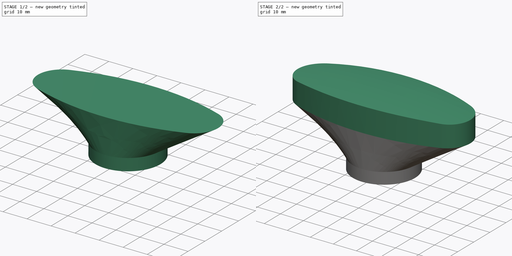
[diagram: build sequence overview — one tinted view per stage of 2, left to right]
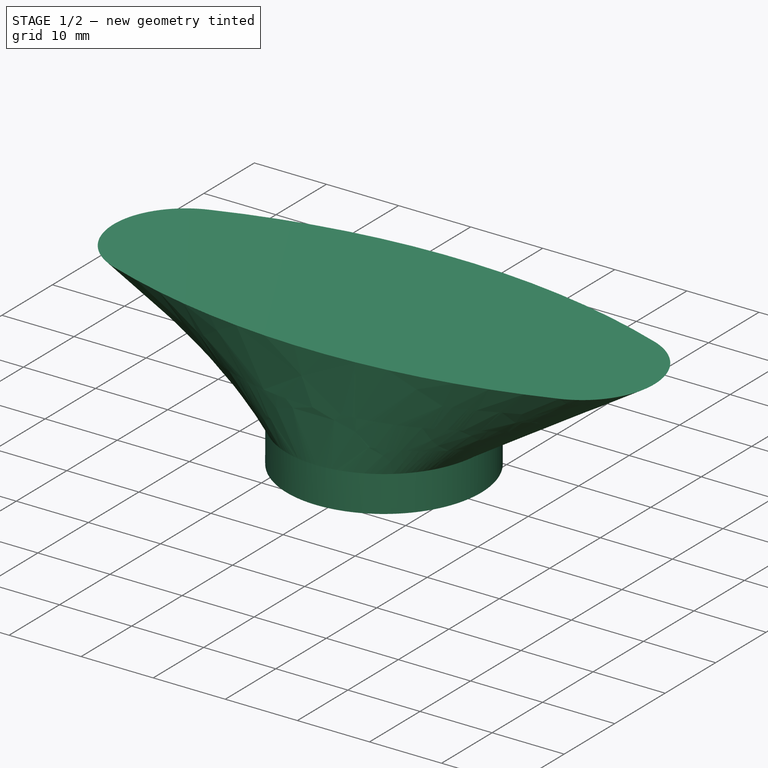
[diagram: stage 1 of 2 — iso view after this stage's code; geometry added in this stage tinted green]
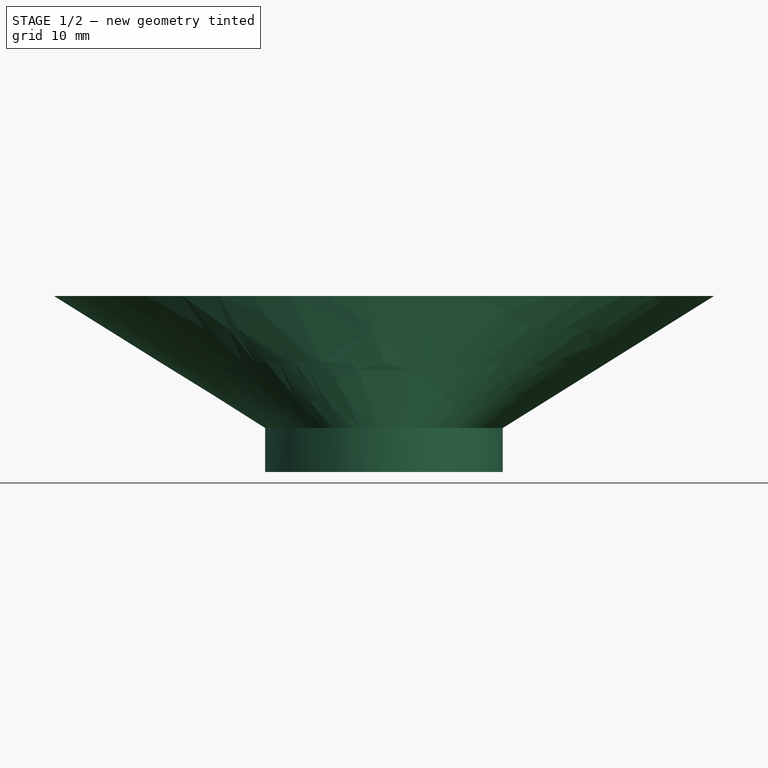
[diagram: stage 1 of 2 — front view after this stage's code; geometry added in this stage tinted green]
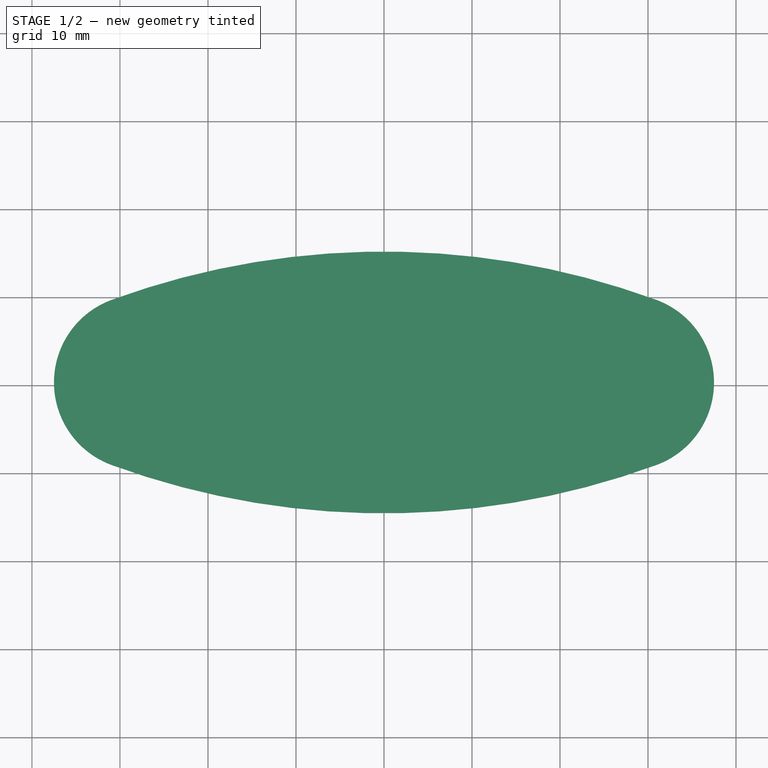
[diagram: stage 1 of 2 — top view after this stage's code; geometry added in this stage tinted green]
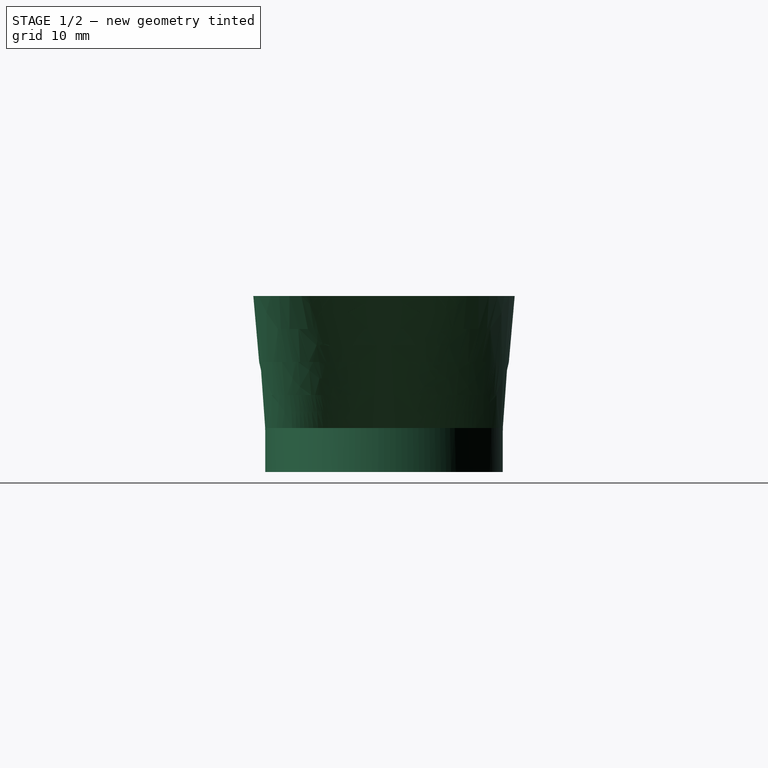
[diagram: stage 1 of 2 — right view after this stage's code; geometry added in this stage tinted green]
FCSTD DOCUMENT  (FreeCAD 1.0R39319 (Git))
Label: Mania2005
License: All rights reserved
LicenseURL: https://en.wikipedia.org/wiki/All_rights_reserved
objects: Sketcher::SketchObject×6, PartDesign::Pad×2, PartDesign::AdditiveLoft×1, PartDesign::SubtractivePipe×1, PartDesign::Body×1
note: 25 computed .brp shape members not serialized (recipe doc carries the construction recipe); baked Part::Feature solids carry a one-line shape summary decoded from their .brp

FEATURE [Sketcher::SketchObject] Sketch
  ArcFitTolerance = 1e-06
  AttachmentSupport = -> [XY_Plane]
  FullyConstrained = true
  MakeInternals = false
  MapMode = 5
  sketch-geometry (1):
    g0: Circle CenterX=0 CenterY=0 CenterZ=0 NormalX=0 NormalY=0 NormalZ=1 AngleXU=0 Radius=13.5
  constraints (2):
    c: Coincident(g0,g-1)
    c: Diameter(g0) = 27
FEATURE [PartDesign::Pad] Pad
  Direction = (0,0,1)
  Length = 5
  Length2 = 10
  Profile = -> Sketch
  ReferenceAxis = -> Sketch [N_Axis]
  Refine = true
  Suppressed = false
  Type = 0
FEATURE [Sketcher::SketchObject] Sketch001
  ArcFitTolerance = 1e-06
  AttachmentSupport = -> [Pad]
  ExternalGeometry = -> [Pad]
  FullyConstrained = true
  MakeInternals = false
  MapMode = 5
  Placement = pos=(0,0,5) rot=(0,0,1;0rad)
  sketch-geometry (1):
    g0: Circle CenterX=0 CenterY=0 CenterZ=0 NormalX=0 NormalY=0 NormalZ=1 AngleXU=0 Radius=13.5
  constraints (2):
    c: Coincident(g0,g-1)
    c: Tangent(g0,g-3)
FEATURE [Sketcher::SketchObject] Sketch002
  ArcFitTolerance = 1e-06
  AttachmentOffset = pos=(0,0,20) rot=(0,0,1;0rad)
  AttachmentSupport = -> [XY_Plane]
  FullyConstrained = true
  MakeInternals = false
  MapMode = 5
  Placement = pos=(0,0,20) rot=(0,0,1;0rad)
  sketch-geometry (6):
    g0: ArcOfCircle CenterX=27.5 CenterY=-3e-16 CenterZ=0 NormalX=0 NormalY=0 NormalZ=1 AngleXU=0 Radius=10 StartAngle=5.0633 EndAngle=7.50307
    g1: ArcOfCircle CenterX=-27.5 CenterY=-1e-16 CenterZ=0 NormalX=0 NormalY=0 NormalZ=1 AngleXU=0 Radius=10 StartAngle=1.9217 EndAngle=4.36148
    g2: GeomPoint X=-37.5 Y=0 Z=0
    g3: GeomPoint X=37.5 Y=0 Z=0
    g4: ArcOfCircle CenterX=0 CenterY=-75.1249 CenterZ=0 NormalX=0 NormalY=0 NormalZ=1 AngleXU=0 Radius=90 StartAngle=1.21989 EndAngle=1.9217
    g5: ArcOfCircle CenterX=1.58e-14 CenterY=75.1249 CenterZ=0 NormalX=0 NormalY=0 NormalZ=1 AngleXU=0 Radius=90 StartAngle=4.36148 EndAngle=5.0633
  constraints (16):
    c: PointOnObject(g2,g1)
    c: PointOnObject(g2,g-1)
    c: Radius(g1) = 10
    c: PointOnObject(g3,g0)
    c: Symmetric(g3,g2,g-2)
    c: Symmetric(g0,g0,g-1)
    c: Symmetric(g1,g1,g-1)
    c: Equal(g1,g0)
    c: Radius(g5) = 90
    c: Coincident(g5,g1)
    c: Coincident(g5,g0)
    c: Coincident(g4,g0)
    c: Equal(g5,g4)
    c: PointOnObject(g4,g-2)
    c: DistanceX(g2,g3) = 75
    c: Tangent(g4,g1) = -1.5708
FEATURE [PartDesign::AdditiveLoft] AdditiveLoft
  BaseFeature = -> Pad
  Closed = false
  Profile = -> Sketch002
  Refine = true
  Ruled = false
  Sections = -> [Sketch001]
  Suppressed = false
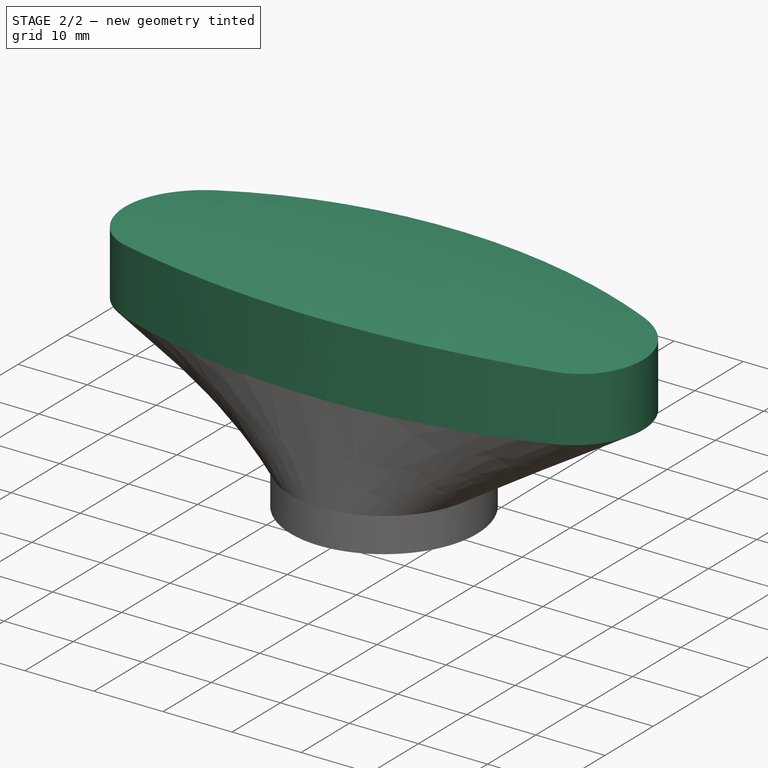
[diagram: stage 2 of 2 — iso view after this stage's code; geometry added in this stage tinted green]
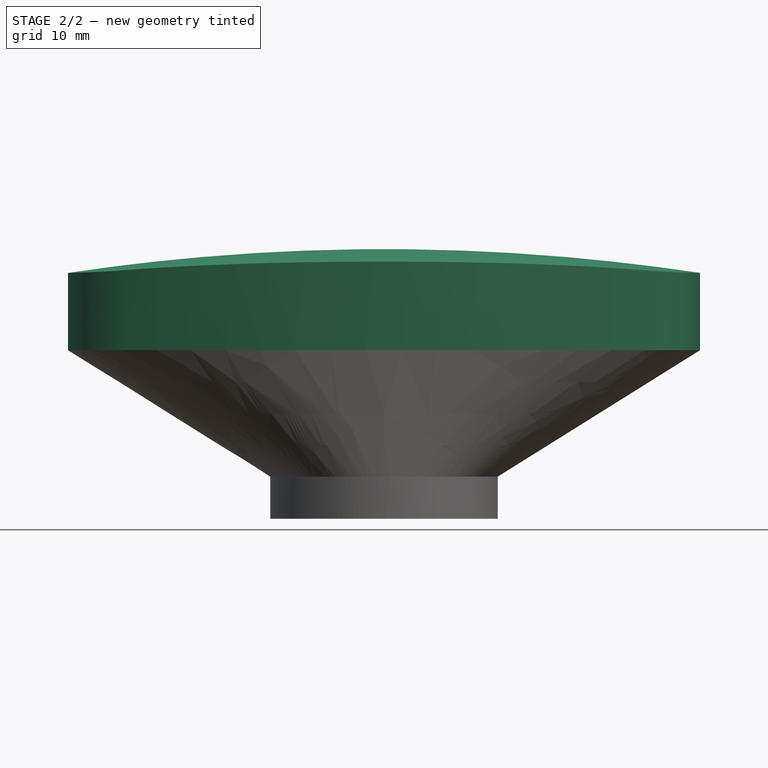
[diagram: stage 2 of 2 — front view after this stage's code; geometry added in this stage tinted green]
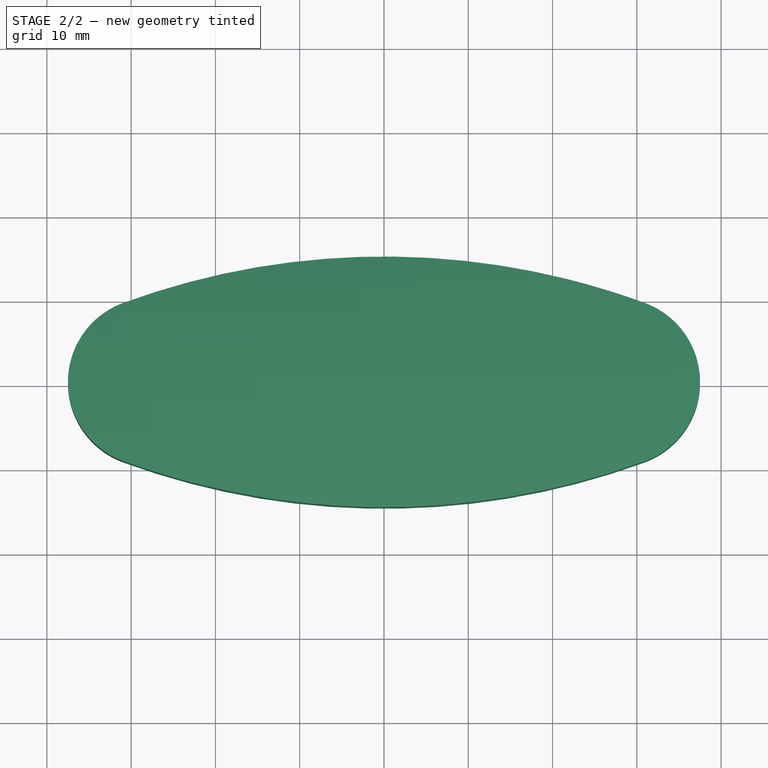
[diagram: stage 2 of 2 — top view after this stage's code; geometry added in this stage tinted green]
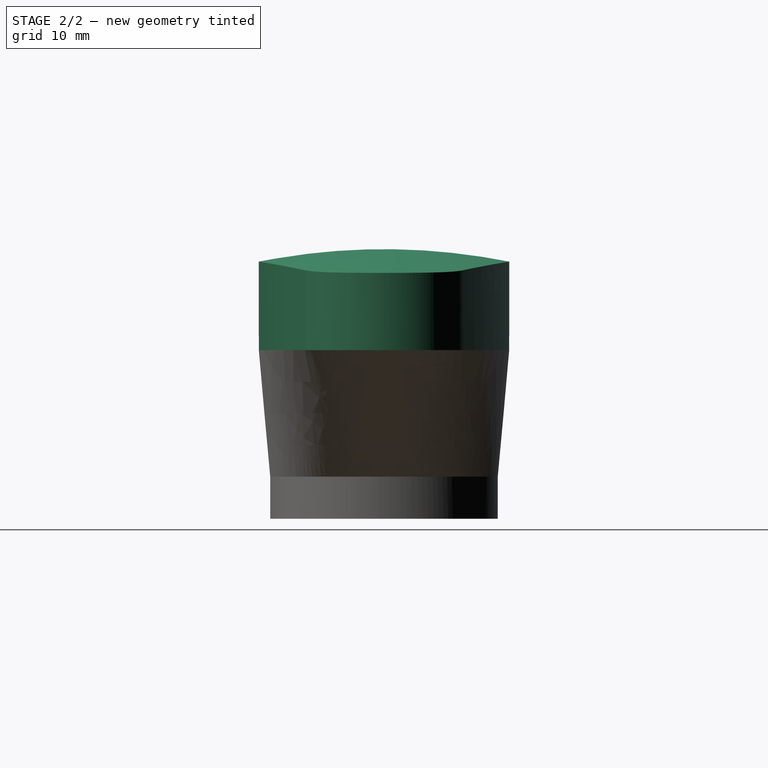
[diagram: stage 2 of 2 — right view after this stage's code; geometry added in this stage tinted green]
FEATURE [Sketcher::SketchObject] Sketch003
  ArcFitTolerance = 1e-06
  AttachmentSupport = -> [AdditiveLoft]
  ExternalGeometry = -> [AdditiveLoft]
  FullyConstrained = true
  MakeInternals = false
  MapMode = 5
  Placement = pos=(0,0,20) rot=(0,0,1;0rad)
  sketch-geometry (4):
    g0: ArcOfCircle CenterX=-27.5 CenterY=-1e-16 CenterZ=0 NormalX=0 NormalY=0 NormalZ=1 AngleXU=0 Radius=10 StartAngle=1.9217 EndAngle=4.36148
    g1: ArcOfCircle CenterX=1.58e-14 CenterY=75.1249 CenterZ=0 NormalX=0 NormalY=0 NormalZ=1 AngleXU=0 Radius=90 StartAngle=4.36148 EndAngle=5.0633
    g2: ArcOfCircle CenterX=0 CenterY=-75.1249 CenterZ=0 NormalX=0 NormalY=0 NormalZ=1 AngleXU=0 Radius=90 StartAngle=1.21989 EndAngle=1.9217
    g3: ArcOfCircle CenterX=27.5 CenterY=-3e-16 CenterZ=0 NormalX=0 NormalY=0 NormalZ=1 AngleXU=0 Radius=10 StartAngle=5.0633 EndAngle=7.50307
  constraints (10):
    c: Coincident(g0,g-5)
    c: Coincident(g0,g-5)
    c: Coincident(g1,g-6)
    c: Coincident(g1,g-6)
    c: Coincident(g1,g0)
    c: Coincident(g2,g-4)
    c: Coincident(g2,g0)
    c: Coincident(g3,g-3)
    c: Coincident(g3,g2)
    c: Coincident(g3,g1)
FEATURE [Sketcher::SketchObject] Sketch005
  ArcFitTolerance = 1e-06
  AttachmentSupport = -> [YZ_Plane]
  FullyConstrained = true
  MakeInternals = false
  MapMode = 5
  Placement = pos=(0,0,0) rot=(0.57735,0.57735,0.57735;2.0944rad)
  sketch-geometry (5):
    g0: ArcOfCircle CenterX=0 CenterY=-43 CenterZ=0 NormalX=0 NormalY=0 NormalZ=1 AngleXU=0 Radius=75 StartAngle=0.610568 EndAngle=2.53102
    g1: LineSegment [constr] StartX=0 StartY=20 StartZ=0 EndX=0 EndY=32 EndZ=0
    g2: LineSegment StartX=-61.4492 StartY=0 StartZ=0 EndX=-61.4492 EndY=50 EndZ=0
    g3: LineSegment StartX=-61.4492 StartY=50 StartZ=0 EndX=61.4492 EndY=50 EndZ=0
    g4: LineSegment StartX=61.4492 StartY=50 StartZ=0 EndX=61.4492 EndY=0 EndZ=0
  constraints (16):
    c: PointOnObject(g0,g-2)
    c: Coincident(g1,g-3)
    c: PointOnObject(g1,g-2)
    c: DistanceY(g1,g1) = 12
    c: Radius(g0) = 75
    c: PointOnObject(g1,g0)
    c: PointOnObject(g0,g-1)
    c: PointOnObject(g0,g-1)
    c: Coincident(g0,g2)
    c: Coincident(g2,g3)
    c: Horizontal(g3)
    c: Coincident(g3,g4)
    c: Coincident(g4,g0)
    c: Vertical(g4)
    c: DistanceY(g4,g4) = 50
    c: Vertical(g2)
FEATURE [PartDesign::Pad] Pad001
  BaseFeature = -> AdditiveLoft
  Direction = (0,0,1)
  Length = 20
  Length2 = 10
  Profile = -> Sketch003
  ReferenceAxis = -> Sketch003 [N_Axis]
  Refine = true
  Suppressed = false
  Type = 0
FEATURE [Sketcher::SketchObject] Sketch004
  ArcFitTolerance = 1e-06
  AttachmentSupport = -> [XZ_Plane]
  ExternalGeometry = -> [Pad001]
  FullyConstrained = true
  MakeInternals = false
  MapMode = 5
  Placement = pos=(0,0,0) rot=(1,0,0;1.5708rad)
  sketch-geometry (2):
    g0: LineSegment [constr] StartX=1.07173e-07 StartY=20 StartZ=0 EndX=0 EndY=32 EndZ=0
    g1: ArcOfCircle CenterX=0 CenterY=-218 CenterZ=0 NormalX=0 NormalY=0 NormalZ=1 AngleXU=0 Radius=250 StartAngle=1.05927 EndAngle=2.08232
  constraints (8):
    c: Symmetric(g-3,g-3,g0)
    c: PointOnObject(g0,g-2)
    c: DistanceY(g0,g0) = 12
    c: Radius(g1) = 250
    c: PointOnObject(g0,g1)
    c: PointOnObject(g1,g-2)
    c: PointOnObject(g1,g-1)
    c: PointOnObject(g1,g-1)
FEATURE [PartDesign::SubtractivePipe] SubtractivePipe
  AuxilleryCurvelinear = true
  AuxillerySpineTangent = false
  BaseFeature = -> Pad001
  Binormal = (0,0,0)
  Mode = 0
  Profile = -> Sketch005
  Refine = true
  Spine = -> Sketch004
  SpineTangent = false
  Suppressed = false
  Transformation = 0
  Transition = 0
FEATURE [PartDesign::Body] Body
  AllowCompound = false
  Group = -> [Sketch,Pad,Sketch001,Sketch002,AdditiveLoft,Sketch003,Pad001,Sketch004,Sketch005,SubtractivePipe]
  Origin = -> Origin
  Tip = -> SubtractivePipe
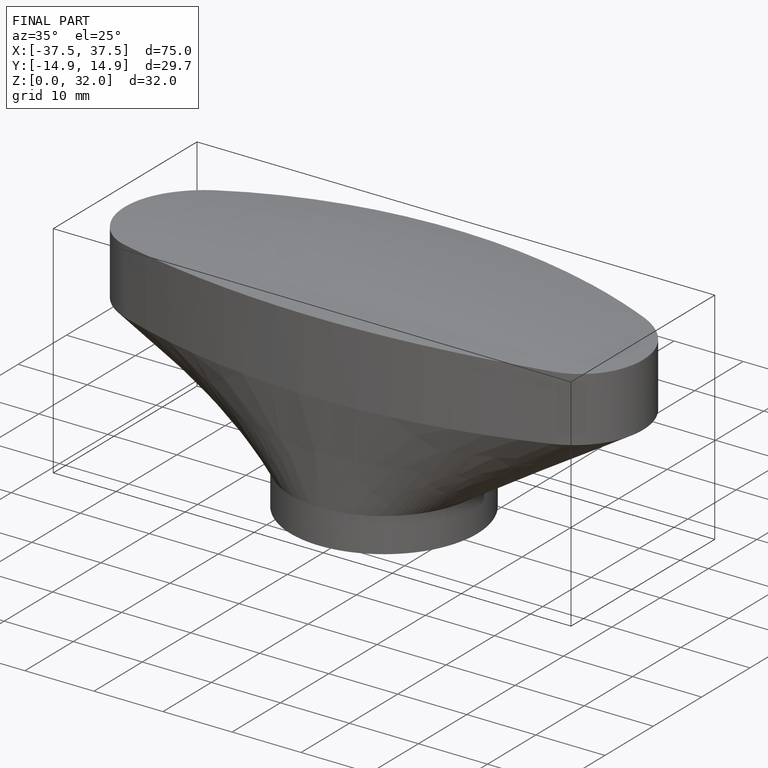
[diagram: finished part — iso view with bounding-box wireframe]
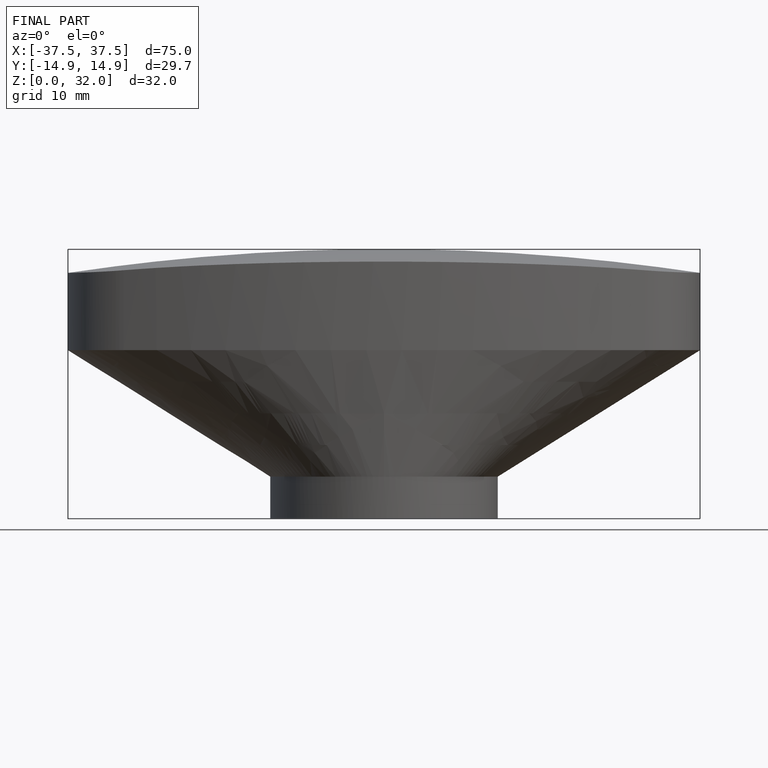
[diagram: finished part — front view with bounding-box wireframe]
